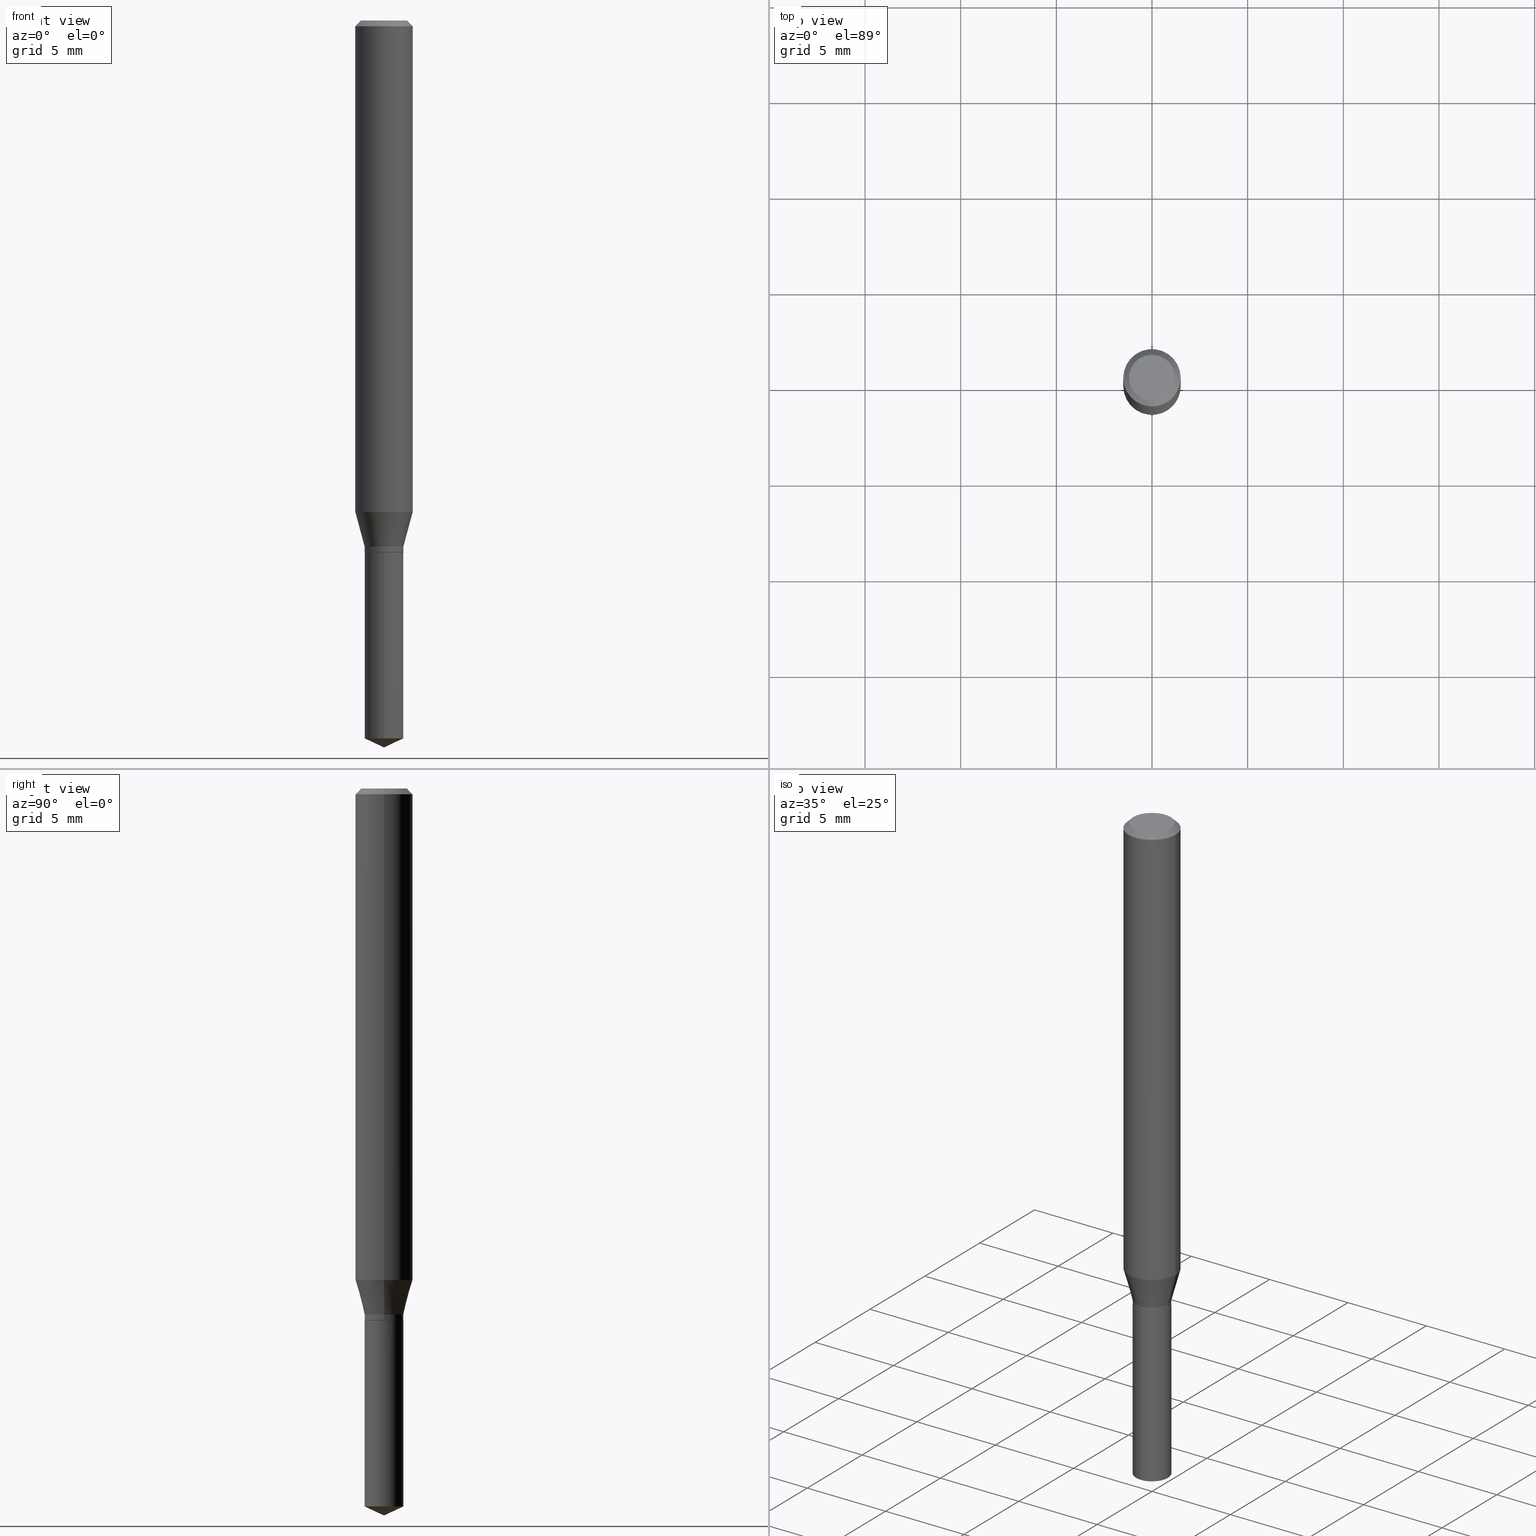
[diagram: canonical four-view strip — front | top / right | iso, engineering-drawing reading convention]
A machine part, canonical four-view strip (front | top / right | iso — engineering-drawing reading convention). The complete STEP part file that produces these views, byte-faithful:
ISO-10303-21;
HEADER;
FILE_DESCRIPTION (( 'STEP AP203' ),
    '1' );
FILE_NAME ('07604.STEP',
    '2024-04-23T23:37:59',
    ( '' ),
    ( '' ),
    'SwSTEP 2.0',
    'SolidWorks 2023',
    '' );
FILE_SCHEMA (( 'CONFIG_CONTROL_DESIGN' ));
ENDSEC;

DATA;
#1 = CALENDAR_DATE ( 2024, 23, 4 ) ;
#2 = DIRECTION ( 'NONE',  ( -2.445468806185136877E-29, 3.491481338843145188E-15, 1.000000000000000000 ) ) ;
#3 = ORIENTED_EDGE ( 'NONE', *, *, #240, .F. ) ;
#4 = AXIS2_PLACEMENT_3D ( 'NONE', #252, #247, #439 ) ;
#5 = CIRCLE ( 'NONE', #318, 0.04724000000000000421 ) ;
#6 = DIRECTION ( 'NONE',  ( 0.2588190451025213501, 1.565188264969621968E-15, 0.9659258262890682012 ) ) ;
#7 = ORIENTED_EDGE ( 'NONE', *, *, #368, .T. ) ;
#8 = DIRECTION ( 'NONE',  ( 0.7071067811865453523, -7.319954787623248157E-15, -0.7071067811865496822 ) ) ;
#9 = ORIENTED_EDGE ( 'NONE', *, *, #25, .T. ) ;
#10 = FACE_OUTER_BOUND ( 'NONE', #125, .T. ) ;
#11 = EDGE_LOOP ( 'NONE', ( #117, #170 ) ) ;
#12 = CYLINDRICAL_SURFACE ( 'NONE', #354, 0.05905000000000006771 ) ;
#13 = CIRCLE ( 'NONE', #194, 0.03944999999999999896 ) ;
#14 = EDGE_LOOP ( 'NONE', ( #274, #382, #114, #310 ) ) ;
#15 = ORIENTED_EDGE ( 'NONE', *, *, #421, .F. ) ;
#16 = EDGE_CURVE ( 'NONE', #385, #396, #229, .T. ) ;
#17 = DIRECTION ( 'NONE',  ( -2.445468806185136597E-29, 3.491481338843145583E-15, 1.000000000000000000 ) ) ;
#18 = VERTEX_POINT ( 'NONE', #429 ) ;
#19 = CARTESIAN_POINT ( 'NONE',  ( 2.676565608369631794E-29, -3.821426325363822773E-15, -1.094499999999999806 ) ) ;
#20 = AXIS2_PLACEMENT_3D ( 'NONE', #109, #489, #443 ) ;
#21 = ORIENTED_EDGE ( 'NONE', *, *, #58, .T. ) ;
#22 = APPROVAL_PERSON_ORGANIZATION ( #359, #453, #74 ) ;
#23 = ORIENTED_EDGE ( 'NONE', *, *, #139, .F. ) ;
#24 = CARTESIAN_POINT ( 'NONE',  ( 0.000000000000000000, 0.000000000000000000, 0.000000000000000000 ) ) ;
#25 = EDGE_CURVE ( 'NONE', #18, #282, #165, .T. ) ;
#26 = DIRECTION ( 'NONE',  ( -0.7071067811865232589, 7.493145998870265808E-15, 0.7071067811865715536 ) ) ;
#27 = AXIS2_PLACEMENT_3D ( 'NONE', #403, #77, #179 ) ;
#28 = VECTOR ( 'NONE', #111, 39.37007874015748143 ) ;
#29 = ORGANIZATION ( 'UNSPECIFIED', 'UNSPECIFIED', '' ) ;
#30 = PERSON_AND_ORGANIZATION_ROLE ( 'design_owner' ) ;
#31 = CARTESIAN_POINT ( 'NONE',  ( 0.03994999999999999940, -4.058497908271271635E-15, -1.082500000000000018 ) ) ;
#32 = EDGE_CURVE ( 'NONE', #451, #201, #35, .T. ) ;
#33 = CARTESIAN_POINT ( 'NONE',  ( 0.05905000000000011628, -3.942992127585471317E-15, -1.011217829575434157 ) ) ;
#34 = LINE ( 'NONE', #303, #28 ) ;
#35 = CIRCLE ( 'NONE', #258, 0.03994999999999999940 ) ;
#36 = DIRECTION ( 'NONE',  ( -2.445468806185136877E-29, 3.491481338843145188E-15, 1.000000000000000000 ) ) ;
#37 = EDGE_CURVE ( 'NONE', #380, #282, #59, .T. ) ;
#38 = PLANE ( 'NONE',  #121 ) ;
#39 = DIRECTION ( 'NONE',  ( 2.445458899330789267E-29, -3.491495526022433599E-15, -1.000000000000000000 ) ) ;
#40 = ORIENTED_EDGE ( 'NONE', *, *, #32, .F. ) ;
#41 = CIRCLE ( 'NONE', #324, 0.05905000000000011628 ) ;
#42 = LOCAL_TIME ( 19, 37, 59.00000000000000000, #488 ) ;
#43 = FACE_OUTER_BOUND ( 'NONE', #85, .T. ) ;
#44 = ORIENTED_EDGE ( 'NONE', *, *, #139, .T. ) ;
#45 = EDGE_CURVE ( 'NONE', #81, #87, #211, .T. ) ;
#46 = PERSON_AND_ORGANIZATION_ROLE ( 'creator' ) ;
#47 = DIRECTION ( 'NONE',  ( 1.000000000000000000, -6.982962677686263555E-15, 0.000000000000000000 ) ) ;
#48 = ADVANCED_FACE ( 'NONE', ( #399 ), #440, .T. ) ;
#49 = EDGE_CURVE ( 'NONE', #81, #389, #73, .T. ) ;
#50 = DIRECTION ( 'NONE',  ( -2.445468806185136597E-29, 3.491481338843145583E-15, 1.000000000000000000 ) ) ;
#51 = ORIENTED_EDGE ( 'NONE', *, *, #289, .F. ) ;
#52 = AXIS2_PLACEMENT_3D ( 'NONE', #437, #214, #365 ) ;
#53 = DIRECTION ( 'NONE',  ( 1.000000000000000000, -6.982962677686266711E-15, 4.876185090822587894E-29 ) ) ;
#54 = CONICAL_SURFACE ( 'NONE', #203, 0.05905000000000000526, 0.7853981633974452814 ) ;
#55 = LOCAL_TIME ( 19, 37, 59.00000000000000000, #269 ) ;
#56 = ORIENTED_EDGE ( 'NONE', *, *, #478, .F. ) ;
#57 = CARTESIAN_POINT ( 'NONE',  ( 0.000000000000000000, 0.000000000000000000, 0.000000000000000000 ) ) ;
#58 = EDGE_CURVE ( 'NONE', #412, #345, #134, .T. ) ;
#59 = LINE ( 'NONE', #320, #265 ) ;
#60 = FACE_OUTER_BOUND ( 'NONE', #189, .T. ) ;
#61 = CARTESIAN_POINT ( 'NONE',  ( 3.613105470653051364E-29, -5.158567890081615658E-15, -1.477471009056707807 ) ) ;
#62 = CARTESIAN_POINT ( 'NONE',  ( -0.03994999999999999940, -3.515742744059892874E-15, -1.082500000000000018 ) ) ;
#63 = ORIENTED_EDGE ( 'NONE', *, *, #217, .F. ) ;
#64 = LENGTH_MEASURE_WITH_UNIT ( LENGTH_MEASURE( 0.02539999999999999897 ), #246 );
#65 = ORIENTED_EDGE ( 'NONE', *, *, #49, .T. ) ;
#66 = EDGE_CURVE ( 'NONE', #389, #391, #433, .T. ) ;
#67 = FACE_OUTER_BOUND ( 'NONE', #463, .T. ) ;
#68 = DATE_AND_TIME ( #137, #100 ) ;
#69 = CARTESIAN_POINT ( 'NONE',  ( 8.265746106709734507E-48, -1.180129479067563789E-33, -3.380025165646692144E-19 ) ) ;
#70 = VECTOR ( 'NONE', #427, 39.37007874015748143 ) ;
#71 = AXIS2_PLACEMENT_3D ( 'NONE', #428, #349, #465 ) ;
#72 = PERSON_AND_ORGANIZATION ( #96, #29 ) ;
#73 = LINE ( 'NONE', #144, #141 ) ;
#74 = APPROVAL_ROLE ( '' ) ;
#75 = LINE ( 'NONE', #367, #362 ) ;
#76 = EDGE_CURVE ( 'NONE', #280, #208, #384, .T. ) ;
#77 = DIRECTION ( 'NONE',  ( -2.445468806185136597E-29, 3.491481338843145583E-15, 1.000000000000000000 ) ) ;
#78 = EDGE_CURVE ( 'NONE', #470, #123, #276, .T. ) ;
#79 = CARTESIAN_POINT ( 'NONE',  ( 4.132873053354867254E-48, -5.900647395337818946E-34, -1.690012582823346072E-19 ) ) ;
#80 = DIRECTION ( 'NONE',  ( -2.445468806185136597E-29, 3.491481338843145583E-15, 1.000000000000000000 ) ) ;
#81 = VERTEX_POINT ( 'NONE', #33 ) ;
#82 = LINE ( 'NONE', #381, #204 ) ;
#83 = ORIENTED_EDGE ( 'NONE', *, *, #37, .T. ) ;
#84 = FACE_OUTER_BOUND ( 'NONE', #154, .T. ) ;
#85 = EDGE_LOOP ( 'NONE', ( #353, #7, #237, #63 ) ) ;
#86 = DIRECTION ( 'NONE',  ( -2.445468806185136597E-29, 3.491481338843145583E-15, 1.000000000000000000 ) ) ;
#87 = VERTEX_POINT ( 'NONE', #332 ) ;
#88 = FACE_OUTER_BOUND ( 'NONE', #461, .T. ) ;
#89 = EDGE_CURVE ( 'NONE', #208, #396, #255, .T. ) ;
#90 = VECTOR ( 'NONE', #8, 39.37007874015748143 ) ;
#91 = PERSON_AND_ORGANIZATION ( #96, #29 ) ;
#92 = FACE_OUTER_BOUND ( 'NONE', #277, .T. ) ;
#93 = EDGE_LOOP ( 'NONE', ( #466, #432, #44, #288 ) ) ;
#94 = ORIENTED_EDGE ( 'NONE', *, *, #217, .T. ) ;
#95 = EDGE_CURVE ( 'NONE', #18, #201, #444, .T. ) ;
#96 = PERSON ( 'UNSPECIFIED', 'UNSPECIFIED', 'UNSPECIFIED', ('UNSPECIFIED'), ('UNSPECIFIED'), ('UNSPECIFIED') ) ;
#97 = CARTESIAN_POINT ( 'NONE',  ( -0.03994999999999999940, -3.515742744059892874E-15, -1.093999999999999861 ) ) ;
#98 = CONICAL_SURFACE ( 'NONE', #278, 0.03994999999999999940, 0.2617993877991500740 ) ;
#99 = ORIENTED_EDGE ( 'NONE', *, *, #435, .T. ) ;
#100 = LOCAL_TIME ( 19, 37, 59.00000000000000000, #102 ) ;
#101 = ORIENTED_EDGE ( 'NONE', *, *, #45, .T. ) ;
#102 = COORDINATED_UNIVERSAL_TIME_OFFSET ( 5, 0, .BEHIND. ) ;
#103 = DIRECTION ( 'NONE',  ( -2.445458899330790108E-29, 3.491495526022433205E-15, 1.000000000000000000 ) ) ;
#104 = DIRECTION ( 'NONE',  ( -2.445468806185136597E-29, 3.491481338843145583E-15, 1.000000000000000000 ) ) ;
#105 = VECTOR ( 'NONE', #250, 39.37007874015748854 ) ;
#106 = CC_DESIGN_APPROVAL ( #284, ( #378 ) ) ;
#107 = FACE_OUTER_BOUND ( 'NONE', #424, .T. ) ;
#108 = CALENDAR_DATE ( 2024, 23, 4 ) ;
#109 = CARTESIAN_POINT ( 'NONE',  ( 2.888098660104665956E-31, -4.123439461173782728E-17, -0.01181000000000007912 ) ) ;
#110 = ADVANCED_FACE ( 'NONE', ( #325 ), #328, .T. ) ;
#111 = DIRECTION ( 'NONE',  ( -2.445468806185136877E-29, 3.491481338843145188E-15, 1.000000000000000000 ) ) ;
#112 = VECTOR ( 'NONE', #351, 39.37007874015747433 ) ;
#113 = CARTESIAN_POINT ( 'NONE',  ( 2.888098660104665956E-31, -4.123439461173782728E-17, -0.01181000000000007912 ) ) ;
#114 = ORIENTED_EDGE ( 'NONE', *, *, #16, .F. ) ;
#115 = EDGE_CURVE ( 'NONE', #280, #385, #219, .T. ) ;
#116 = CARTESIAN_POINT ( 'NONE',  ( -0.05905000000000000526, 3.711095515056362547E-16, -0.01181000000000007912 ) ) ;
#117 = ORIENTED_EDGE ( 'NONE', *, *, #32, .T. ) ;
#118 = CARTESIAN_POINT ( 'NONE',  ( 2.647219982695410164E-29, -3.779528549297705110E-15, -1.082500000000000018 ) ) ;
#119 = ORIENTED_EDGE ( 'NONE', *, *, #66, .F. ) ;
#120 = AXIS2_PLACEMENT_3D ( 'NONE', #145, #490, #295 ) ;
#121 = AXIS2_PLACEMENT_3D ( 'NONE', #79, #185, #304 ) ;
#122 = CARTESIAN_POINT ( 'NONE',  ( 2.676565608369631794E-29, -3.821426325363822773E-15, -1.094499999999999806 ) ) ;
#123 = VERTEX_POINT ( 'NONE', #31 ) ;
#124 = DIRECTION ( 'NONE',  ( -0.7071067811865453523, 2.468850131082234184E-15, -0.7071067811865496822 ) ) ;
#125 = EDGE_LOOP ( 'NONE', ( #56, #83, #228 ) ) ;
#126 = DIRECTION ( 'NONE',  ( -2.445468806185136597E-29, 3.491481338843145583E-15, 1.000000000000000000 ) ) ;
#127 = AXIS2_PLACEMENT_3D ( 'NONE', #161, #472, #286 ) ;
#128 = SHAPE_DEFINITION_REPRESENTATION ( #468, #400 ) ;
#129 = DIRECTION ( 'NONE',  ( -2.445468806185136597E-29, 3.491481338843145583E-15, 1.000000000000000000 ) ) ;
#130 = ADVANCED_FACE ( 'NONE', ( #184 ), #334, .F. ) ;
#131 = ORIENTED_EDGE ( 'NONE', *, *, #16, .T. ) ;
#132 = CIRCLE ( 'NONE', #158, 0.03994999999999999940 ) ;
#133 = APPROVAL_PERSON_ORGANIZATION ( #72, #284, #143 ) ;
#134 = CIRCLE ( 'NONE', #485, 0.04724000000000000421 ) ;
#135 = CARTESIAN_POINT ( 'NONE',  ( -0.03944999999999999896, -3.541117216106463356E-15, -1.094499999999999806 ) ) ;
#136 = COORDINATED_UNIVERSAL_TIME_OFFSET ( 5, 0, .BEHIND. ) ;
#137 = CALENDAR_DATE ( 2024, 23, 4 ) ;
#138 = CARTESIAN_POINT ( 'NONE',  ( 2.838618229361961104E-16, 0.03994999999999617607, -1.094500000000000028 ) ) ;
#139 = EDGE_CURVE ( 'NONE', #385, #123, #34, .T. ) ;
#140 = DIRECTION ( 'NONE',  ( -2.445468806185136597E-29, 3.491481338843145583E-15, 1.000000000000000000 ) ) ;
#141 = VECTOR ( 'NONE', #36, 39.37007874015748143 ) ;
#142 = AXIS2_PLACEMENT_3D ( 'NONE', #293, #103, #264 ) ;
#143 = APPROVAL_ROLE ( '' ) ;
#144 = CARTESIAN_POINT ( 'NONE',  ( 0.05905000000000006771, -4.123439461173745257E-16, 2.879382386107503723E-30 ) ) ;
#145 = CARTESIAN_POINT ( 'NONE',  ( 2.676565608369631794E-29, -3.821426325363822773E-15, -1.094499999999999806 ) ) ;
#146 = EDGE_CURVE ( 'NONE', #282, #18, #230, .T. ) ;
#147 = CARTESIAN_POINT ( 'NONE',  ( -0.03944999999999999896, -3.538467988932352155E-15, -1.094499999999999806 ) ) ;
#148 = ORIENTED_EDGE ( 'NONE', *, *, #408, .T. ) ;
#149 = AXIS2_PLACEMENT_3D ( 'NONE', #113, #344, #372 ) ;
#150 = DIRECTION ( 'NONE',  ( -2.445468806185136597E-29, 3.491481338843145583E-15, 1.000000000000000000 ) ) ;
#151 = EDGE_LOOP ( 'NONE', ( #101, #410, #119, #160 ) ) ;
#152 = PRODUCT_RELATED_PRODUCT_CATEGORY ( 'detail', '', ( #413 ) ) ;
#153 = CARTESIAN_POINT ( 'NONE',  ( -0.04724000000000000421, 3.504923541997677355E-16, -3.380025165670481712E-19 ) ) ;
#154 = EDGE_LOOP ( 'NONE', ( #312, #9, #99, #341 ) ) ;
#155 = CYLINDRICAL_SURFACE ( 'NONE', #416, 0.03994999999999999940 ) ;
#156 = ADVANCED_FACE ( 'NONE', ( #67 ), #98, .T. ) ;
#157 = ORIENTED_EDGE ( 'NONE', *, *, #478, .T. ) ;
#158 = AXIS2_PLACEMENT_3D ( 'NONE', #223, #406, #458 ) ;
#159 = CARTESIAN_POINT ( 'NONE',  ( 2.676565608369631794E-29, -3.821426325363822773E-15, -1.094499999999999806 ) ) ;
#160 = ORIENTED_EDGE ( 'NONE', *, *, #49, .F. ) ;
#161 = CARTESIAN_POINT ( 'NONE',  ( 2.647219982695410164E-29, -3.779528549297705110E-15, -1.082500000000000018 ) ) ;
#162 = ORIENTED_EDGE ( 'NONE', *, *, #89, .F. ) ;
#163 = DIRECTION ( 'NONE',  ( 1.000000000000000000, -6.982962677686266711E-15, 4.876176775795936353E-29 ) ) ;
#164 = ORIENTED_EDGE ( 'NONE', *, *, #76, .F. ) ;
#165 = CIRCLE ( 'NONE', #469, 0.03994999999999999940 ) ;
#166 = DIRECTION ( 'NONE',  ( 1.000000000000000000, -6.982962677686263555E-15, 0.000000000000000000 ) ) ;
#167 = CC_DESIGN_APPROVAL ( #445, ( #426 ) ) ;
#168 = DIRECTION ( 'NONE',  ( -2.445458899330790108E-29, 3.491495526022433205E-15, 1.000000000000000000 ) ) ;
#169 = CC_DESIGN_PERSON_AND_ORGANIZATION_ASSIGNMENT ( #224, #199, ( #426 ) ) ;
#170 = ORIENTED_EDGE ( 'NONE', *, *, #268, .T. ) ;
#171 = DIRECTION ( 'NONE',  ( -2.445468806185136597E-29, 3.491481338843145583E-15, 1.000000000000000000 ) ) ;
#172 = DIRECTION ( 'NONE',  ( -2.445458899330790108E-29, 3.491495526022433205E-15, 1.000000000000000000 ) ) ;
#173 = MECHANICAL_CONTEXT ( 'NONE', #262, 'mechanical' ) ;
#174 = AXIS2_PLACEMENT_3D ( 'NONE', #259, #447, #178 ) ;
#175 = CONICAL_SURFACE ( 'NONE', #449, 0.03944999999999999896, 0.7853981633974141952 ) ;
#176 = DIRECTION ( 'NONE',  ( -2.445458899330790108E-29, 3.491495526022433205E-15, 1.000000000000000000 ) ) ;
#177 = APPROVAL_DATE_TIME ( #180, #453 ) ;
#178 = DIRECTION ( 'NONE',  ( 1.000000000000000000, -6.982962677686263555E-15, 0.000000000000000000 ) ) ;
#179 = DIRECTION ( 'NONE',  ( 1.000000000000000000, -6.982962677686265922E-15, 4.876176775795936353E-29 ) ) ;
#180 = DATE_AND_TIME ( #436, #42 ) ;
#181 = DIRECTION ( 'NONE',  ( 1.000000000000000000, -6.982962677686267499E-15, 0.000000000000000000 ) ) ;
#182 = CONICAL_SURFACE ( 'NONE', #249, 84.42940631927474726, 1.134464013796317783 ) ;
#183 = ADVANCED_FACE ( 'NONE', ( #107 ), #298, .T. ) ;
#184 = FACE_OUTER_BOUND ( 'NONE', #315, .T. ) ;
#185 = DIRECTION ( 'NONE',  ( 2.438088387897960049E-29, -3.491481338843145188E-15, -1.000000000000000000 ) ) ;
#186 = CARTESIAN_POINT ( 'NONE',  ( 3.658651059288794515E-29, -5.223626456482161457E-15, -1.496099999999999985 ) ) ;
#187 = ORIENTED_EDGE ( 'NONE', *, *, #206, .F. ) ;
#188 = LINE ( 'NONE', #342, #90 ) ;
#189 = EDGE_LOOP ( 'NONE', ( #162, #343, #375, #15 ) ) ;
#190 = PERSON_AND_ORGANIZATION_ROLE ( 'design_supplier' ) ;
#191 = CARTESIAN_POINT ( 'NONE',  ( 0.05905000000000000526, -4.535783407291119586E-16, -0.01181000000000007912 ) ) ;
#192 = ORIENTED_EDGE ( 'NONE', *, *, #95, .T. ) ;
#193 = FACE_OUTER_BOUND ( 'NONE', #14, .T. ) ;
#194 = AXIS2_PLACEMENT_3D ( 'NONE', #122, #86, #47 ) ;
#195 = CARTESIAN_POINT ( 'NONE',  ( 3.658672935554494692E-29, -5.223595400746700193E-15, -1.496099999999999985 ) ) ;
#196 = CARTESIAN_POINT ( 'NONE',  ( 2.676565608369631794E-29, -3.821426325363822773E-15, -1.094499999999999806 ) ) ;
#197 = DIRECTION ( 'NONE',  ( 0.000000000000000000, 0.000000000000000000, 1.000000000000000000 ) ) ;
#198 = ADVANCED_FACE ( 'NONE', ( #260 ), #479, .T. ) ;
#199 = PERSON_AND_ORGANIZATION_ROLE ( 'classification_officer' ) ;
#200 = CARTESIAN_POINT ( 'NONE',  ( 2.675342873966538993E-29, -3.819680584694400481E-15, -1.093999999999999861 ) ) ;
#201 = VERTEX_POINT ( 'NONE', #138 ) ;
#202 = AXIS2_PLACEMENT_3D ( 'NONE', #358, #126, #317 ) ;
#203 = AXIS2_PLACEMENT_3D ( 'NONE', #346, #450, #270 ) ;
#204 = VECTOR ( 'NONE', #335, 39.37007874015748143 ) ;
#205 = ORIENTED_EDGE ( 'NONE', *, *, #146, .F. ) ;
#206 = EDGE_CURVE ( 'NONE', #123, #81, #75, .T. ) ;
#207 =( CONVERSION_BASED_UNIT ( 'INCH', #64 ) LENGTH_UNIT ( ) NAMED_UNIT ( #216 ) );
#208 = VERTEX_POINT ( 'NONE', #147 ) ;
#209 = DIRECTION ( 'NONE',  ( 1.000000000000000000, -6.982962677686263555E-15, 0.000000000000000000 ) ) ;
#210 = DATE_TIME_ROLE ( 'creation_date' ) ;
#211 = CIRCLE ( 'NONE', #4, 0.05905000000000011628 ) ;
#212 = CC_DESIGN_DATE_AND_TIME_ASSIGNMENT ( #404, #222, ( #426 ) ) ;
#213 = DIRECTION ( 'NONE',  ( -2.445458899330790108E-29, 3.491495526022433599E-15, 1.000000000000000000 ) ) ;
#214 = DIRECTION ( 'NONE',  ( -2.445468806185136597E-29, 3.491481338843145583E-15, 1.000000000000000000 ) ) ;
#215 = DIRECTION ( 'NONE',  ( -2.445468806185136597E-29, 3.491481338843145583E-15, 1.000000000000000000 ) ) ;
#216 = DIMENSIONAL_EXPONENTS ( 1.000000000000000000, 0.000000000000000000, 0.000000000000000000, 0.000000000000000000, 0.000000000000000000, 0.000000000000000000, 0.000000000000000000 ) ;
#217 = EDGE_CURVE ( 'NONE', #345, #391, #411, .T. ) ;
#218 = APPROVAL_DATE_TIME ( #402, #284 ) ;
#219 = LINE ( 'NONE', #327, #330 ) ;
#220 = AXIS2_PLACEMENT_3D ( 'NONE', #409, #80, #225 ) ;
#221 = CC_DESIGN_APPROVAL ( #453, ( #386 ) ) ;
#222 = DATE_TIME_ROLE ( 'classification_date' ) ;
#223 = CARTESIAN_POINT ( 'NONE',  ( 2.676565608369631794E-29, -3.821426325363822773E-15, -1.094499999999999806 ) ) ;
#224 = PERSON_AND_ORGANIZATION ( #96, #29 ) ;
#225 = DIRECTION ( 'NONE',  ( 1.000000000000000000, -6.982962677686263555E-15, 0.000000000000000000 ) ) ;
#226 = ORIENTED_EDGE ( 'NONE', *, *, #368, .F. ) ;
#227 = DIRECTION ( 'NONE',  ( -2.445458899330790108E-29, 3.491495526022433205E-15, 1.000000000000000000 ) ) ;
#228 = ORIENTED_EDGE ( 'NONE', *, *, #25, .F. ) ;
#229 = CIRCLE ( 'NONE', #202, 0.03994999999999999940 ) ;
#230 = CIRCLE ( 'NONE', #142, 0.03994999999999999940 ) ;
#231 = LOCAL_TIME ( 19, 37, 59.00000000000000000, #301 ) ;
#232 = DIRECTION ( 'NONE',  ( -6.982962677686265133E-15, -1.000000000000000000, 3.419083846888940091E-15 ) ) ;
#233 = ORIENTED_EDGE ( 'NONE', *, *, #45, .F. ) ;
#234 = CARTESIAN_POINT ( 'NONE',  ( 0.000000000000000000, 0.000000000000000000, 0.000000000000000000 ) ) ;
#235 = ORIENTED_EDGE ( 'NONE', *, *, #37, .F. ) ;
#236 = CARTESIAN_POINT ( 'NONE',  ( -0.05905000000000000526, -1.366365802573577175E-15, -0.01181000000000007912 ) ) ;
#237 = ORIENTED_EDGE ( 'NONE', *, *, #66, .T. ) ;
#238 = VECTOR ( 'NONE', #213, 39.37007874015748143 ) ;
#239 = APPLICATION_PROTOCOL_DEFINITION ( 'international standard', 'config_control_design', 1994, #262 ) ;
#240 = EDGE_CURVE ( 'NONE', #391, #389, #441, .T. ) ;
#241 = DIRECTION ( 'NONE',  ( -6.982962677686265133E-15, -1.000000000000000000, 3.419083846888940091E-15 ) ) ;
#242 = SECURITY_CLASSIFICATION_LEVEL ( 'unclassified' ) ;
#243 = DIRECTION ( 'NONE',  ( -2.445468806185136597E-29, 3.491481338843145583E-15, 1.000000000000000000 ) ) ;
#244 = ADVANCED_FACE ( 'NONE', ( #10 ), #182, .T. ) ;
#245 = ORIENTED_EDGE ( 'NONE', *, *, #464, .T. ) ;
#246 =( LENGTH_UNIT ( ) NAMED_UNIT ( * ) SI_UNIT ( $, .METRE. ) );
#247 = DIRECTION ( 'NONE',  ( -2.445468806185136597E-29, 3.491481338843145583E-15, 1.000000000000000000 ) ) ;
#248 = EDGE_CURVE ( 'NONE', #396, #470, #279, .T. ) ;
#249 = AXIS2_PLACEMENT_3D ( 'NONE', #339, #419, #314 ) ;
#250 = DIRECTION ( 'NONE',  ( 6.439704144417034297E-15, 0.9063077870366528233, 0.4226182617406930020 ) ) ;
#251 = CC_DESIGN_SECURITY_CLASSIFICATION ( #426, ( #378 ) ) ;
#252 = CARTESIAN_POINT ( 'NONE',  ( 2.472901658484962006E-29, -3.530648181468096792E-15, -1.011217829575434157 ) ) ;
#253 = ADVANCED_FACE ( 'NONE', ( #311 ), #12, .T. ) ;
#254 = APPROVAL_ROLE ( '' ) ;
#255 = LINE ( 'NONE', #135, #448 ) ;
#256 = APPROVAL_DATE_TIME ( #438, #445 ) ;
#257 = APPROVAL_STATUS ( 'not_yet_approved' ) ;
#258 = AXIS2_PLACEMENT_3D ( 'NONE', #196, #172, #241 ) ;
#259 = CARTESIAN_POINT ( 'NONE',  ( 2.647219982695410164E-29, -3.779528549297705110E-15, -1.082500000000000018 ) ) ;
#260 = FACE_OUTER_BOUND ( 'NONE', #93, .T. ) ;
#261 = EDGE_CURVE ( 'NONE', #87, #391, #82, .T. ) ;
#262 = APPLICATION_CONTEXT ( 'configuration controlled 3d designs of mechanical parts and assemblies' ) ;
#263 = DIRECTION ( 'NONE',  ( -2.445468806185136597E-29, 3.491481338843145583E-15, 1.000000000000000000 ) ) ;
#264 = DIRECTION ( 'NONE',  ( -6.982962677686265133E-15, -1.000000000000000000, 6.838167693777880182E-15 ) ) ;
#265 = VECTOR ( 'NONE', #473, 39.37007874015748854 ) ;
#266 = VECTOR ( 'NONE', #2, 39.37007874015748143 ) ;
#267 = APPROVAL_PERSON_ORGANIZATION ( #407, #445, #254 ) ;
#268 = EDGE_CURVE ( 'NONE', #201, #451, #132, .T. ) ;
#269 = COORDINATED_UNIVERSAL_TIME_OFFSET ( 5, 0, .BEHIND. ) ;
#270 = DIRECTION ( 'NONE',  ( -1.000000000000000000, 6.982962677686267499E-15, 0.000000000000000000 ) ) ;
#271 = EDGE_LOOP ( 'NONE', ( #434, #192, #40, #337 ) ) ;
#272 = CARTESIAN_POINT ( 'NONE',  ( -2.789693589735301393E-16, -0.03995000000000515500, -1.477471009056707585 ) ) ;
#273 = ADVANCED_FACE ( 'NONE', ( #84 ), #155, .T. ) ;
#274 = ORIENTED_EDGE ( 'NONE', *, *, #76, .T. ) ;
#275 = DIRECTION ( 'NONE',  ( 6.982962677686265922E-15, 1.000000000000000000, -3.491495526022433599E-15 ) ) ;
#276 = CIRCLE ( 'NONE', #174, 0.03994999999999999940 ) ;
#277 = EDGE_LOOP ( 'NONE', ( #350, #148, #65, #3 ) ) ;
#278 = AXIS2_PLACEMENT_3D ( 'NONE', #484, #140, #209 ) ;
#279 = LINE ( 'NONE', #454, #266 ) ;
#280 = VERTEX_POINT ( 'NONE', #376 ) ;
#281 =( NAMED_UNIT ( * ) SI_UNIT ( $, .STERADIAN. ) SOLID_ANGLE_UNIT ( ) );
#282 = VERTEX_POINT ( 'NONE', #272 ) ;
#283 = AXIS2_PLACEMENT_3D ( 'NONE', #24, #17, #163 ) ;
#284 = APPROVAL ( #364, 'UNSPECIFIED' ) ;
#285 = DIRECTION ( 'NONE',  ( -2.445468806185136597E-29, 3.491481338843145583E-15, 1.000000000000000000 ) ) ;
#286 = DIRECTION ( 'NONE',  ( 1.000000000000000000, -6.982962677686263555E-15, 0.000000000000000000 ) ) ;
#287 = LINE ( 'NONE', #387, #70 ) ;
#288 = ORIENTED_EDGE ( 'NONE', *, *, #78, .F. ) ;
#289 = EDGE_CURVE ( 'NONE', #208, #280, #13, .T. ) ;
#290 = CIRCLE ( 'NONE', #392, 0.03994999999999999940 ) ;
#291 = ORIENTED_EDGE ( 'NONE', *, *, #408, .F. ) ;
#292 = PERSON_AND_ORGANIZATION ( #96, #29 ) ;
#293 = CARTESIAN_POINT ( 'NONE',  ( 3.613105470653051364E-29, -5.158567890081615658E-15, -1.477471009056707807 ) ) ;
#294 = CALENDAR_DATE ( 2024, 23, 4 ) ;
#295 = DIRECTION ( 'NONE',  ( 1.000000000000000000, -6.982962677686265922E-15, 4.876176775795935793E-29 ) ) ;
#296 = CC_DESIGN_PERSON_AND_ORGANIZATION_ASSIGNMENT ( #395, #30, ( #413 ) ) ;
#297 = APPLICATION_CONTEXT ( 'configuration controlled 3d designs of mechanical parts and assemblies' ) ;
#298 = CONICAL_SURFACE ( 'NONE', #331, 84.42940631927474726, 1.134464013796317783 ) ;
#299 = DIRECTION ( 'NONE',  ( 1.000000000000000000, -6.982962677686266711E-15, 4.876185090822587894E-29 ) ) ;
#300 =( GEOMETRIC_REPRESENTATION_CONTEXT ( 3 ) GLOBAL_UNCERTAINTY_ASSIGNED_CONTEXT ( ( #355 ) ) GLOBAL_UNIT_ASSIGNED_CONTEXT ( ( #207, #323, #281 ) ) REPRESENTATION_CONTEXT ( 'NONE', 'WORKASPACE' ) );
#301 = COORDINATED_UNIVERSAL_TIME_OFFSET ( 5, 0, .BEHIND. ) ;
#302 = CARTESIAN_POINT ( 'NONE',  ( 2.888098660104665956E-31, -4.123439461173782728E-17, -0.01181000000000007912 ) ) ;
#303 = CARTESIAN_POINT ( 'NONE',  ( 0.03994999999999999940, -2.789693589735663283E-16, 1.948032621930476467E-30 ) ) ;
#304 = DIRECTION ( 'NONE',  ( -1.000000000000000000, 6.982962677686265922E-15, -4.876176775795935793E-29 ) ) ;
#305 = ORIENTED_EDGE ( 'NONE', *, *, #240, .T. ) ;
#306 = DIRECTION ( 'NONE',  ( 1.000000000000000000, -6.982962677686266711E-15, 4.876176775795936353E-29 ) ) ;
#307 = EDGE_LOOP ( 'NONE', ( #131, #394, #455, #23 ) ) ;
#308 = PERSON_AND_ORGANIZATION ( #96, #29 ) ;
#309 = FACE_OUTER_BOUND ( 'NONE', #11, .T. ) ;
#310 = ORIENTED_EDGE ( 'NONE', *, *, #115, .F. ) ;
#311 = FACE_OUTER_BOUND ( 'NONE', #151, .T. ) ;
#312 = ORIENTED_EDGE ( 'NONE', *, *, #95, .F. ) ;
#313 = CONICAL_SURFACE ( 'NONE', #220, 0.03944999999999999896, 0.7853981633974141952 ) ;
#314 = DIRECTION ( 'NONE',  ( -6.982962677686267499E-15, -1.000000000000000000, 3.520397390770436909E-15 ) ) ;
#315 = EDGE_LOOP ( 'NONE', ( #164, #51 ) ) ;
#316 = EDGE_LOOP ( 'NONE', ( #245, #21 ) ) ;
#317 = DIRECTION ( 'NONE',  ( 1.000000000000000000, -6.982962677686263555E-15, 0.000000000000000000 ) ) ;
#318 = AXIS2_PLACEMENT_3D ( 'NONE', #431, #171, #53 ) ;
#319 = CYLINDRICAL_SURFACE ( 'NONE', #283, 0.05905000000000006771 ) ;
#320 = CARTESIAN_POINT ( 'NONE',  ( 3.658651059288795076E-29, -5.223626456482161457E-15, -1.496099999999999985 ) ) ;
#321 = CARTESIAN_POINT ( 'NONE',  ( 0.04724000000000000421, -3.852183633974369838E-16, -3.380025165621689721E-19 ) ) ;
#322 = ORIENTED_EDGE ( 'NONE', *, *, #206, .T. ) ;
#323 =( NAMED_UNIT ( * ) PLANE_ANGLE_UNIT ( ) SI_UNIT ( $, .RADIAN. ) );
#324 = AXIS2_PLACEMENT_3D ( 'NONE', #352, #243, #388 ) ;
#325 = FACE_OUTER_BOUND ( 'NONE', #307, .T. ) ;
#326 = ADVANCED_FACE ( 'NONE', ( #462 ), #38, .F. ) ;
#327 = CARTESIAN_POINT ( 'NONE',  ( 0.03944999999999999896, -4.096904202998545503E-15, -1.094499999999999806 ) ) ;
#328 = CYLINDRICAL_SURFACE ( 'NONE', #27, 0.03994999999999999940 ) ;
#329 = MANIFOLD_SOLID_BREP ( 'Body-Move/Copy2[1]', #415 ) ;
#330 = VECTOR ( 'NONE', #370, 39.37007874015748854 ) ;
#331 = AXIS2_PLACEMENT_3D ( 'NONE', #361, #176, #482 ) ;
#332 = CARTESIAN_POINT ( 'NONE',  ( -0.05905000000000011628, -3.111072696001756510E-15, -1.011217829575434157 ) ) ;
#333 = ADVANCED_FACE ( 'NONE', ( #43 ), #54, .T. ) ;
#334 = PLANE ( 'NONE',  #120 ) ;
#335 = DIRECTION ( 'NONE',  ( -2.445468806185136877E-29, 3.491481338843145188E-15, 1.000000000000000000 ) ) ;
#336 = CC_DESIGN_PERSON_AND_ORGANIZATION_ASSIGNMENT ( #91, #190, ( #378 ) ) ;
#337 = ORIENTED_EDGE ( 'NONE', *, *, #435, .F. ) ;
#338 = MANIFOLD_SOLID_BREP ( 'Body-Move/Copy2[2]', #423 ) ;
#339 = CARTESIAN_POINT ( 'NONE',  ( -9.261924752013118283E-28, 1.322368428517963298E-13, 37.87397874015748300 ) ) ;
#340 = CONICAL_SURFACE ( 'NONE', #127, 0.03994999999999999940, 0.2617993877991500740 ) ;
#341 = ORIENTED_EDGE ( 'NONE', *, *, #268, .F. ) ;
#342 = CARTESIAN_POINT ( 'NONE',  ( 0.05905000000000000526, -4.463468013801467941E-16, -0.01181000000000007912 ) ) ;
#343 = ORIENTED_EDGE ( 'NONE', *, *, #289, .T. ) ;
#344 = DIRECTION ( 'NONE',  ( -2.445468806185136597E-29, 3.491481338843145583E-15, 1.000000000000000000 ) ) ;
#345 = VERTEX_POINT ( 'NONE', #153 ) ;
#346 = CARTESIAN_POINT ( 'NONE',  ( 2.888098660104665956E-31, -4.123439461173782728E-17, -0.01181000000000007912 ) ) ;
#347 = AXIS2_PLACEMENT_3D ( 'NONE', #302, #263, #181 ) ;
#348 = ORIENTED_EDGE ( 'NONE', *, *, #78, .T. ) ;
#349 = DIRECTION ( 'NONE',  ( -2.445458899330790108E-29, 3.491495526022433205E-15, 1.000000000000000000 ) ) ;
#350 = ORIENTED_EDGE ( 'NONE', *, *, #261, .F. ) ;
#351 = DIRECTION ( 'NONE',  ( -0.2588190451025213501, 5.211531920934551042E-15, 0.9659258262890682012 ) ) ;
#352 = CARTESIAN_POINT ( 'NONE',  ( 2.472901658484962006E-29, -3.530648181468096792E-15, -1.011217829575434157 ) ) ;
#353 = ORIENTED_EDGE ( 'NONE', *, *, #58, .F. ) ;
#354 = AXIS2_PLACEMENT_3D ( 'NONE', #234, #150, #306 ) ;
#355 = UNCERTAINTY_MEASURE_WITH_UNIT (LENGTH_MEASURE( 1.000000000000000082E-05 ), #207, 'distance_accuracy_value', 'NONE');
#356 = CARTESIAN_POINT ( 'NONE',  ( -2.789693589735395563E-16, -0.03995000000000382273, -1.094499999999999806 ) ) ;
#357 = EDGE_CURVE ( 'NONE', #123, #470, #290, .T. ) ;
#358 = CARTESIAN_POINT ( 'NONE',  ( 2.675342873966538993E-29, -3.819680584694400481E-15, -1.093999999999999861 ) ) ;
#359 = PERSON_AND_ORGANIZATION ( #96, #29 ) ;
#360 = ADVANCED_FACE ( 'NONE', ( #193 ), #313, .T. ) ;
#361 = CARTESIAN_POINT ( 'NONE',  ( -9.261924752013118283E-28, 1.322368428517963298E-13, 37.87397874015748300 ) ) ;
#362 = VECTOR ( 'NONE', #6, 39.37007874015747433 ) ;
#363 = CARTESIAN_POINT ( 'NONE',  ( 2.838618229361866934E-16, 0.03994999999999617607, -1.094500000000000028 ) ) ;
#364 = APPROVAL_STATUS ( 'not_yet_approved' ) ;
#365 = DIRECTION ( 'NONE',  ( 1.000000000000000000, -6.982962677686263555E-15, 0.000000000000000000 ) ) ;
#366 = APPLICATION_PROTOCOL_DEFINITION ( 'international standard', 'config_control_design', 1994, #297 ) ;
#367 = CARTESIAN_POINT ( 'NONE',  ( 0.03994999999999999940, -4.058497908271271635E-15, -1.082500000000000018 ) ) ;
#368 = EDGE_CURVE ( 'NONE', #412, #389, #188, .T. ) ;
#369 = LOCAL_TIME ( 19, 37, 59.00000000000000000, #136 ) ;
#370 = DIRECTION ( 'NONE',  ( 0.7071067811865232589, -2.468850131082003836E-15, 0.7071067811865715536 ) ) ;
#371 = CC_DESIGN_DATE_AND_TIME_ASSIGNMENT ( #68, #210, ( #386 ) ) ;
#372 = DIRECTION ( 'NONE',  ( 1.000000000000000000, -6.982962677686267499E-15, 0.000000000000000000 ) ) ;
#373 = PLANE ( 'NONE',  #487 ) ;
#374 = ADVANCED_FACE ( 'NONE', ( #309 ), #373, .F. ) ;
#375 = ORIENTED_EDGE ( 'NONE', *, *, #115, .T. ) ;
#376 = CARTESIAN_POINT ( 'NONE',  ( 0.03944999999999999896, -4.096904202998545503E-15, -1.094499999999999806 ) ) ;
#377 = ORIENTED_EDGE ( 'NONE', *, *, #464, .F. ) ;
#378 = PRODUCT_DEFINITION_FORMATION_WITH_SPECIFIED_SOURCE ( 'ANY', '', #413, .NOT_KNOWN. ) ;
#379 = DIRECTION ( 'NONE',  ( 1.000000000000000000, -6.982962677686263555E-15, 0.000000000000000000 ) ) ;
#380 = VERTEX_POINT ( 'NONE', #186 ) ;
#381 = CARTESIAN_POINT ( 'NONE',  ( -0.05905000000000006771, 4.195754854663396409E-16, -2.904631170795525045E-30 ) ) ;
#382 = ORIENTED_EDGE ( 'NONE', *, *, #89, .T. ) ;
#383 = LINE ( 'NONE', #474, #112 ) ;
#384 = CIRCLE ( 'NONE', #52, 0.03944999999999999896 ) ;
#385 = VERTEX_POINT ( 'NONE', #414 ) ;
#386 = PRODUCT_DEFINITION ( 'UNKNOWN', '', #378, #452 ) ;
#387 = CARTESIAN_POINT ( 'NONE',  ( -2.789693589735395563E-16, -0.03995000000000382273, -1.094499999999999806 ) ) ;
#388 = DIRECTION ( 'NONE',  ( 1.000000000000000000, -6.982962677686266711E-15, 0.000000000000000000 ) ) ;
#389 = VERTEX_POINT ( 'NONE', #191 ) ;
#390 = DIRECTION ( 'NONE',  ( 1.000000000000000000, -6.982962677686263555E-15, 0.000000000000000000 ) ) ;
#391 = VERTEX_POINT ( 'NONE', #236 ) ;
#392 = AXIS2_PLACEMENT_3D ( 'NONE', #118, #50, #379 ) ;
#393 = LINE ( 'NONE', #195, #105 ) ;
#394 = ORIENTED_EDGE ( 'NONE', *, *, #248, .T. ) ;
#395 = PERSON_AND_ORGANIZATION ( #96, #29 ) ;
#396 = VERTEX_POINT ( 'NONE', #97 ) ;
#397 = CC_DESIGN_PERSON_AND_ORGANIZATION_ASSIGNMENT ( #308, #46, ( #378 ) ) ;
#398 = DIRECTION ( 'NONE',  ( 1.000000000000000000, -6.982962677686265922E-15, 4.876176775795936353E-29 ) ) ;
#399 = FACE_OUTER_BOUND ( 'NONE', #420, .T. ) ;
#400 = ADVANCED_BREP_SHAPE_REPRESENTATION ( '07604', ( #329, #338, #405 ), #300 ) ;
#401 = CARTESIAN_POINT ( 'NONE',  ( 0.000000000000000000, 0.000000000000000000, 0.000000000000000000 ) ) ;
#402 = DATE_AND_TIME ( #108, #231 ) ;
#403 = CARTESIAN_POINT ( 'NONE',  ( 0.000000000000000000, 0.000000000000000000, 0.000000000000000000 ) ) ;
#404 = DATE_AND_TIME ( #1, #55 ) ;
#405 = AXIS2_PLACEMENT_3D ( 'NONE', #57, #197, #483 ) ;
#406 = DIRECTION ( 'NONE',  ( -2.445458899330790108E-29, 3.491495526022433205E-15, 1.000000000000000000 ) ) ;
#407 = PERSON_AND_ORGANIZATION ( #96, #29 ) ;
#408 = EDGE_CURVE ( 'NONE', #87, #81, #41, .T. ) ;
#409 = CARTESIAN_POINT ( 'NONE',  ( 2.676565608369631794E-29, -3.821426325363822773E-15, -1.094499999999999806 ) ) ;
#410 = ORIENTED_EDGE ( 'NONE', *, *, #261, .T. ) ;
#411 = LINE ( 'NONE', #116, #425 ) ;
#412 = VERTEX_POINT ( 'NONE', #321 ) ;
#413 = PRODUCT ( '07604', '07604', '', ( #173 ) ) ;
#414 = CARTESIAN_POINT ( 'NONE',  ( 0.03994999999999999940, -4.098649943667967006E-15, -1.093999999999999861 ) ) ;
#415 = CLOSED_SHELL ( 'NONE', ( #480, #183, #244, #273, #374 ) ) ;
#416 = AXIS2_PLACEMENT_3D ( 'NONE', #159, #227, #232 ) ;
#417 = ORIENTED_EDGE ( 'NONE', *, *, #442, .F. ) ;
#418 = ADVANCED_FACE ( 'NONE', ( #60 ), #175, .T. ) ;
#419 = DIRECTION ( 'NONE',  ( -2.445458899330790108E-29, 3.491495526022433205E-15, 1.000000000000000000 ) ) ;
#420 = EDGE_LOOP ( 'NONE', ( #226, #377, #94, #305 ) ) ;
#421 = EDGE_CURVE ( 'NONE', #396, #385, #471, .T. ) ;
#422 = CC_DESIGN_PERSON_AND_ORGANIZATION_ASSIGNMENT ( #292, #481, ( #386 ) ) ;
#423 = CLOSED_SHELL ( 'NONE', ( #360, #333, #253, #460, #110, #198, #156, #446, #48, #326, #130, #418 ) ) ;
#424 = EDGE_LOOP ( 'NONE', ( #235, #157, #205 ) ) ;
#425 = VECTOR ( 'NONE', #124, 39.37007874015748143 ) ;
#426 = SECURITY_CLASSIFICATION ( '', '', #242 ) ;
#427 = DIRECTION ( 'NONE',  ( -2.445458899330790108E-29, 3.491495526022433599E-15, 1.000000000000000000 ) ) ;
#428 = CARTESIAN_POINT ( 'NONE',  ( 2.676565608369631794E-29, -3.821426325363822773E-15, -1.094499999999999806 ) ) ;
#429 = CARTESIAN_POINT ( 'NONE',  ( 2.838618229361961597E-16, 0.03994999999999483686, -1.477471009056708251 ) ) ;
#430 = APPROVAL_STATUS ( 'not_yet_approved' ) ;
#431 = CARTESIAN_POINT ( 'NONE',  ( 8.265746106709734507E-48, -1.180129479067563789E-33, -3.380025165646692144E-19 ) ) ;
#432 = ORIENTED_EDGE ( 'NONE', *, *, #421, .T. ) ;
#433 = CIRCLE ( 'NONE', #347, 0.05905000000000000526 ) ;
#434 = ORIENTED_EDGE ( 'NONE', *, *, #146, .T. ) ;
#435 = EDGE_CURVE ( 'NONE', #282, #451, #287, .T. ) ;
#436 = CALENDAR_DATE ( 2024, 23, 4 ) ;
#437 = CARTESIAN_POINT ( 'NONE',  ( 2.676565608369631794E-29, -3.821426325363822773E-15, -1.094499999999999806 ) ) ;
#438 = DATE_AND_TIME ( #294, #369 ) ;
#439 = DIRECTION ( 'NONE',  ( 1.000000000000000000, -6.982962677686266711E-15, 0.000000000000000000 ) ) ;
#440 = CONICAL_SURFACE ( 'NONE', #20, 0.05905000000000000526, 0.7853981633974452814 ) ;
#441 = CIRCLE ( 'NONE', #149, 0.05905000000000000526 ) ;
#442 = EDGE_CURVE ( 'NONE', #470, #87, #383, .T. ) ;
#443 = DIRECTION ( 'NONE',  ( -1.000000000000000000, 6.982962677686267499E-15, 0.000000000000000000 ) ) ;
#444 = LINE ( 'NONE', #363, #238 ) ;
#445 = APPROVAL ( #430, 'UNSPECIFIED' ) ;
#446 = ADVANCED_FACE ( 'NONE', ( #92 ), #319, .T. ) ;
#447 = DIRECTION ( 'NONE',  ( -2.445468806185136597E-29, 3.491481338843145583E-15, 1.000000000000000000 ) ) ;
#448 = VECTOR ( 'NONE', #26, 39.37007874015748854 ) ;
#449 = AXIS2_PLACEMENT_3D ( 'NONE', #19, #285, #390 ) ;
#450 = DIRECTION ( 'NONE',  ( 2.445468806185136597E-29, -3.491481338843145583E-15, -1.000000000000000000 ) ) ;
#451 = VERTEX_POINT ( 'NONE', #356 ) ;
#452 = DESIGN_CONTEXT ( 'detailed design', #297, 'design' ) ;
#453 = APPROVAL ( #257, 'UNSPECIFIED' ) ;
#454 = CARTESIAN_POINT ( 'NONE',  ( -0.03994999999999999940, 2.838618229361600200E-16, -1.965114568556834950E-30 ) ) ;
#455 = ORIENTED_EDGE ( 'NONE', *, *, #357, .F. ) ;
#456 = CARTESIAN_POINT ( 'NONE',  ( 2.676565608369631794E-29, -3.821426325363822773E-15, -1.094499999999999806 ) ) ;
#457 = ORIENTED_EDGE ( 'NONE', *, *, #357, .T. ) ;
#458 = DIRECTION ( 'NONE',  ( -6.982962677686265133E-15, -1.000000000000000000, 3.419083846888940091E-15 ) ) ;
#459 = AXIS2_PLACEMENT_3D ( 'NONE', #401, #215, #398 ) ;
#460 = ADVANCED_FACE ( 'NONE', ( #88 ), #340, .T. ) ;
#461 = EDGE_LOOP ( 'NONE', ( #457, #477, #233, #187 ) ) ;
#462 = FACE_OUTER_BOUND ( 'NONE', #316, .T. ) ;
#463 = EDGE_LOOP ( 'NONE', ( #417, #348, #322, #291 ) ) ;
#464 = EDGE_CURVE ( 'NONE', #345, #412, #5, .T. ) ;
#465 = DIRECTION ( 'NONE',  ( -6.982962677686265133E-15, -1.000000000000000000, 3.419083846888940091E-15 ) ) ;
#466 = ORIENTED_EDGE ( 'NONE', *, *, #248, .F. ) ;
#467 = FACE_OUTER_BOUND ( 'NONE', #271, .T. ) ;
#468 = PRODUCT_DEFINITION_SHAPE ( 'NONE', 'NONE',  #386 ) ;
#469 = AXIS2_PLACEMENT_3D ( 'NONE', #61, #168, #475 ) ;
#470 = VERTEX_POINT ( 'NONE', #62 ) ;
#471 = CIRCLE ( 'NONE', #486, 0.03994999999999999940 ) ;
#472 = DIRECTION ( 'NONE',  ( -2.445468806185136597E-29, 3.491481338843145583E-15, 1.000000000000000000 ) ) ;
#473 = DIRECTION ( 'NONE',  ( -6.328713451373378845E-15, -0.9063077870366499367, 0.4226182617406992748 ) ) ;
#474 = CARTESIAN_POINT ( 'NONE',  ( -0.03994999999999999940, -3.495666726361545189E-15, -1.082500000000000018 ) ) ;
#475 = DIRECTION ( 'NONE',  ( -6.982962677686265133E-15, -1.000000000000000000, 6.838167693777880182E-15 ) ) ;
#476 = CYLINDRICAL_SURFACE ( 'NONE', #71, 0.03994999999999999940 ) ;
#477 = ORIENTED_EDGE ( 'NONE', *, *, #442, .T. ) ;
#478 = EDGE_CURVE ( 'NONE', #380, #18, #393, .T. ) ;
#479 = CYLINDRICAL_SURFACE ( 'NONE', #459, 0.03994999999999999940 ) ;
#480 = ADVANCED_FACE ( 'NONE', ( #467 ), #476, .T. ) ;
#481 = PERSON_AND_ORGANIZATION_ROLE ( 'creator' ) ;
#482 = DIRECTION ( 'NONE',  ( -6.982962677686267499E-15, -1.000000000000000000, 3.520397390770436909E-15 ) ) ;
#483 = DIRECTION ( 'NONE',  ( 1.000000000000000000, 0.000000000000000000, 0.000000000000000000 ) ) ;
#484 = CARTESIAN_POINT ( 'NONE',  ( 2.647219982695410164E-29, -3.779528549297705110E-15, -1.082500000000000018 ) ) ;
#485 = AXIS2_PLACEMENT_3D ( 'NONE', #69, #104, #299 ) ;
#486 = AXIS2_PLACEMENT_3D ( 'NONE', #200, #129, #166 ) ;
#487 = AXIS2_PLACEMENT_3D ( 'NONE', #456, #39, #275 ) ;
#488 = COORDINATED_UNIVERSAL_TIME_OFFSET ( 5, 0, .BEHIND. ) ;
#489 = DIRECTION ( 'NONE',  ( 2.445468806185136597E-29, -3.491481338843145583E-15, -1.000000000000000000 ) ) ;
#490 = DIRECTION ( 'NONE',  ( -2.438088387897960049E-29, 3.491481338843145188E-15, 1.000000000000000000 ) ) ;
ENDSEC;
END-ISO-10303-21;
